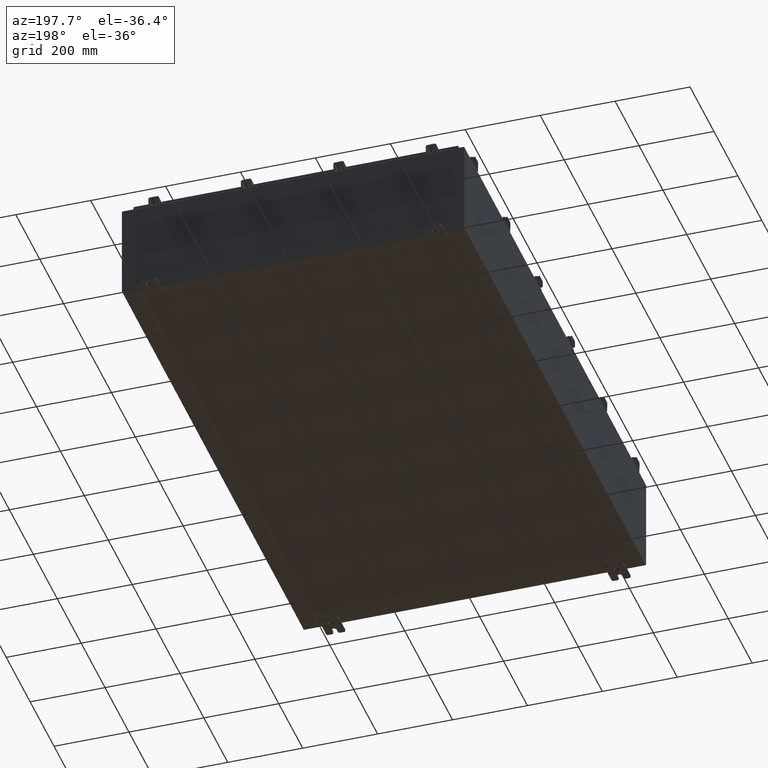
[diagram: clean part render]
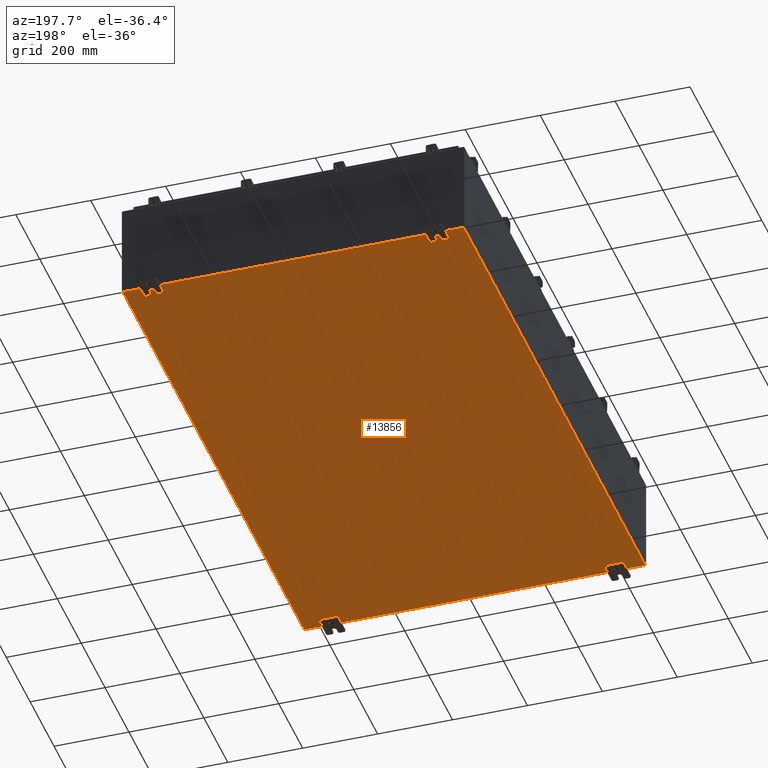
[diagram: same view with one face highlighted and labeled with its STEP entity id]
A machine part, auxiliary view. The second image highlights one B-rep face of the part: STEP entity #13856.
In plain terms, the highlighted planar face has unit normal (0, 0, -1).
Its self-contained STEP definition (entity closure, byte-faithful):
#187 = VERTEX_POINT ( 'NONE', #5253 ) ;
#563 = LINE ( 'NONE', #1776, #11218 ) ;
#692 = ORIENTED_EDGE ( 'NONE', *, *, #8323, .F. ) ;
#1333 = CARTESIAN_POINT ( 'NONE',  ( -17.91230000000000200, -29.92530000000001100, -0.07469999999999994700 ) ) ;
#1645 = PLANE ( 'NONE',  #10580 ) ;
#1776 = CARTESIAN_POINT ( 'NONE',  ( -18.00000000000000400, -29.92530000000001100, -0.07470000000000000300 ) ) ;
#2590 = VERTEX_POINT ( 'NONE', #7006 ) ;
#3372 = VECTOR ( 'NONE', #20801, 39.37007874015748100 ) ;
#3772 = CARTESIAN_POINT ( 'NONE',  ( 0.0000000000000000000, 0.0000000000000000000, -0.07470000000000000300 ) ) ;
#3893 = DIRECTION ( 'NONE',  ( 1.000000000000000000, 0.0000000000000000000, 0.0000000000000000000 ) ) ;
#5253 = CARTESIAN_POINT ( 'NONE',  ( -17.91230000000000200, 29.92529999999998600, -0.07470000000000000300 ) ) ;
#5893 = DIRECTION ( 'NONE',  ( 0.0000000000000000000, 0.0000000000000000000, -1.000000000000000000 ) ) ;
#6096 = VECTOR ( 'NONE', #25570, 39.37007874015748100 ) ;
#7006 = CARTESIAN_POINT ( 'NONE',  ( 17.91229999999999800, -29.92530000000001100, -0.07470000000000000300 ) ) ;
#8323 = EDGE_CURVE ( 'NONE', #25766, #187, #23103, .T. ) ;
#8908 = LINE ( 'NONE', #20498, #19544 ) ;
#9453 = VERTEX_POINT ( 'NONE', #1333 ) ;
#9697 = LINE ( 'NONE', #25005, #3372 ) ;
#9909 = DIRECTION ( 'NONE',  ( -0.0000000000000000000, 1.000000000000000000, -0.0000000000000000000 ) ) ;
#10532 = ORIENTED_EDGE ( 'NONE', *, *, #11351, .T. ) ;
#10580 = AXIS2_PLACEMENT_3D ( 'NONE', #3772, #5893, #20783 ) ;
#11218 = VECTOR ( 'NONE', #3893, 39.37007874015748100 ) ;
#11351 = EDGE_CURVE ( 'NONE', #25766, #2590, #9697, .T. ) ;
#11636 = EDGE_LOOP ( 'NONE', ( #27416, #12006, #692, #10532 ) ) ;
#12006 = ORIENTED_EDGE ( 'NONE', *, *, #24736, .T. ) ;
#13856 = ADVANCED_FACE ( 'NONE', ( #22559 ), #1645, .T. ) ;
#15084 = EDGE_CURVE ( 'NONE', #9453, #2590, #563, .T. ) ;
#19544 = VECTOR ( 'NONE', #9909, 39.37007874015748100 ) ;
#19597 = CARTESIAN_POINT ( 'NONE',  ( 17.91229999999999800, 29.92529999999999300, -0.07469999999999994700 ) ) ;
#20498 = CARTESIAN_POINT ( 'NONE',  ( -17.91230000000000200, -29.92530000000002100, -0.07469999999999994700 ) ) ;
#20783 = DIRECTION ( 'NONE',  ( -1.000000000000000000, 0.0000000000000000000, -0.0000000000000000000 ) ) ;
#20801 = DIRECTION ( 'NONE',  ( -0.0000000000000000000, -1.000000000000000000, -0.0000000000000000000 ) ) ;
#22559 = FACE_OUTER_BOUND ( 'NONE', #11636, .T. ) ;
#23103 = LINE ( 'NONE', #27316, #6096 ) ;
#24736 = EDGE_CURVE ( 'NONE', #9453, #187, #8908, .T. ) ;
#25005 = CARTESIAN_POINT ( 'NONE',  ( 17.91229999999999800, 29.92529999999999300, -0.07469999999999994700 ) ) ;
#25570 = DIRECTION ( 'NONE',  ( -1.000000000000000000, -0.0000000000000000000, -0.0000000000000000000 ) ) ;
#25766 = VERTEX_POINT ( 'NONE', #19597 ) ;
#27316 = CARTESIAN_POINT ( 'NONE',  ( -18.00000000000000400, 29.92529999999998900, -0.07470000000000000300 ) ) ;
#27416 = ORIENTED_EDGE ( 'NONE', *, *, #15084, .F. ) ;